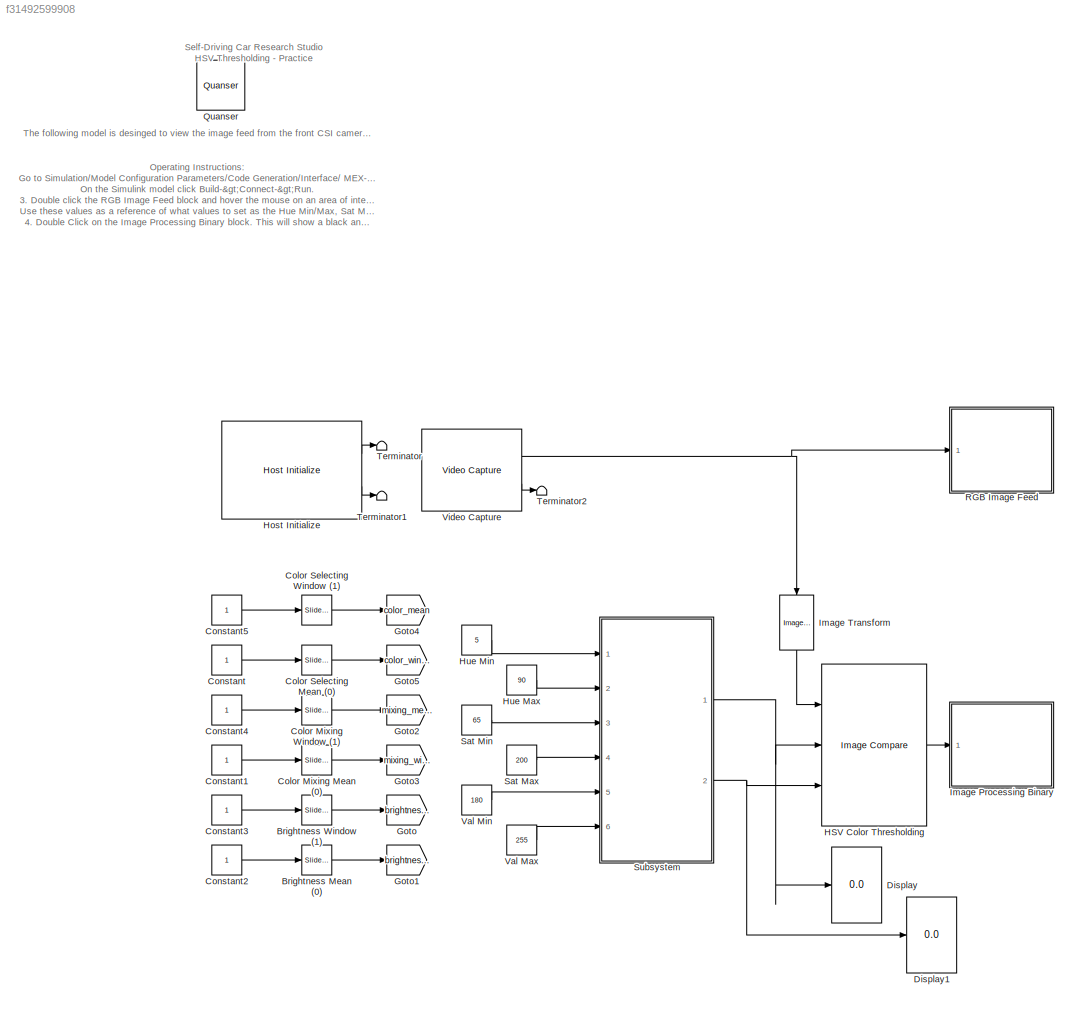
MODEL slx_f31492599908
KIND model
CONFIG AbsTol = auto
CONFIG EnableMultiTasking = on
CONFIG FixedStep = 1/600
CONFIG MaxStep = auto
CONFIG MinStep = auto
CONFIG RelTol = 1e-3
CONFIG SampleTimeConstraint = Unconstrained
CONFIG Solver = FixedStepDiscrete
CONFIG SolverName = FixedStepDiscrete
CONFIG StartTime = 0.0
CONFIG StopTime = inf
BLOCK [Reference] Brightness Mean (0)  REF=simulink/Math
Operations/Slider
Gain
  Ports = [1, 1]
  SourceBlock = simulink/Math\nOperations/Slider\nGain
  SourceProductBaseCode = SL
  SourceProductName = Simulink
  SourceType = Slider Gain
BLOCK [Reference] Brightness Window (1)  REF=simulink/Math
Operations/Slider
Gain
  Ports = [1, 1]
  SourceBlock = simulink/Math\nOperations/Slider\nGain
  SourceProductBaseCode = SL
  SourceProductName = Simulink
  SourceType = Slider Gain
BLOCK [Reference] Color Mixing Mean (0)  REF=simulink/Math
Operations/Slider
Gain
  Ports = [1, 1]
  SourceBlock = simulink/Math\nOperations/Slider\nGain
  SourceProductBaseCode = SL
  SourceProductName = Simulink
  SourceType = Slider Gain
BLOCK [Reference] Color Mixing Window (1)  REF=simulink/Math
Operations/Slider
Gain
  Ports = [1, 1]
  SourceBlock = simulink/Math\nOperations/Slider\nGain
  SourceProductBaseCode = SL
  SourceProductName = Simulink
  SourceType = Slider Gain
BLOCK [Reference] Color Selecting Mean (0)  REF=simulink/Math
Operations/Slider
Gain
  Ports = [1, 1]
  SourceBlock = simulink/Math\nOperations/Slider\nGain
  SourceProductBaseCode = SL
  SourceProductName = Simulink
  SourceType = Slider Gain
BLOCK [Reference] Color Selecting Window (1)  REF=simulink/Math
Operations/Slider
Gain
  Ports = [1, 1]
  SourceBlock = simulink/Math\nOperations/Slider\nGain
  SourceProductBaseCode = SL
  SourceProductName = Simulink
  SourceType = Slider Gain
BLOCK [Constant] Constant
BLOCK [Constant] Constant1
BLOCK [Constant] Constant2
BLOCK [Constant] Constant3
BLOCK [Constant] Constant4
BLOCK [Constant] Constant5
BLOCK [Display] Display
  Decimation = 1
  Ports = [1]
BLOCK [Display] Display1
  Decimation = 1
  Ports = [1]
BLOCK [Goto] Goto
  GotoTag = brightness_mean
  TagVisibility = global
BLOCK [Goto] Goto1
  GotoTag = brightness_window
  TagVisibility = global
BLOCK [Goto] Goto2
  GotoTag = mixing_mean
  TagVisibility = global
BLOCK [Goto] Goto3
  GotoTag = mixing_window
  TagVisibility = global
BLOCK [Goto] Goto4
  GotoTag = color_mean
  TagVisibility = global
BLOCK [Goto] Goto5
  GotoTag = color_window
  TagVisibility = global
BLOCK [Reference] HSV Color Thresholding  REF=quarc_library/Image Processing/Generic/Image Compare
  Ports = [3, 1]
  SourceBlock = quarc_library/Image Processing/Generic/Image Compare
  SourceProductName = QUARC Targets
  SourceType = Image Compare
BLOCK [Reference] Host Initialize  REF=quarc_library/Devices/Peripherals/Host/Host Initialize
  Ports = [0, 2]
  SourceBlock = quarc_library/Devices/Peripherals/Host/Host Initialize
  SourceProductName = QUARC Targets
  SourceType = Host Initialize
BLOCK [Constant] Hue Max
  Value = 90
BLOCK [Constant] Hue Min
  Value = 5
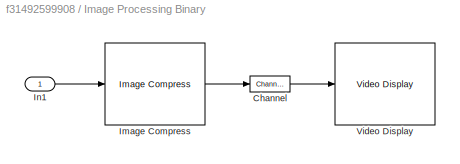
BLOCK [SubSystem] Image Processing Binary 
  CopyFcn = set_param(gcbh, 'UserData', gcb);\nset_param(gcbh, 'LinkStatus', 'none');
  LoadFcn = set_param(gcbh, 'UserData', gcb);
  NameChangeFcn = video_display_show([get_param(gcbh, 'UserData'), '/Video Display'], 'rename', [gcb, '/Video Display']);\nvideo_display_show([gcb, '/Video Display'], 'add', gcb);\nset_param(gcbh, 'UserData', gcb);
  OpenFcn = video_display_show([gcb, '/Video Display'], 'show', gcb);
  Ports = [1]
  PreDeleteFcn = video_display_show([gcb, '/Video Display'], 'delete');
  RequestExecContextInheritance = off
  StartFcn = video_display_show([gcb, '/Video Display'], 'add', gcb);
  UndoDeleteFcn = set_param(gcbh, 'UserData', gcb);
BLOCK [Reference] Image Processing Binary /Channel  REF=quarc_library/Signal Routing/Channel
  Ports = [1, 1]
  SourceBlock = quarc_library/Signal Routing/Channel
  SourceProductName = QUARC Targets
  SourceType = Channel
BLOCK [Reference] Image Processing Binary /Image Compress  REF=quarc_library/Image Processing/Generic/Image Compress
  AttributesFormatString = (%<algorithm>)
  Ports = [1, 1]
  SourceBlock = quarc_library/Image Processing/Generic/Image Compress
  SourceProductName = QUARC Targets
  SourceType = Image Compress
BLOCK [Inport] Image Processing Binary /In1
  IconDisplay = Port number
BLOCK [Reference] Image Processing Binary /Video Display  REF=quarc_library/Multimedia/Video Display
  Ports = [1]
  SourceBlock = quarc_library/Multimedia/Video Display
  SourceProductName = QUARC Targets
  SourceType = Video Display
  Tag = HSV_Selection/Image Processing \nBinary /Video Display
  UserDataPersistent = on
BLOCK [Reference] Image Transform  REF=quarc_library/Image Processing/Generic/Image Transform
  AttributesFormatString = (%<algorithm>)
  Ports = [1, 1]
  SourceBlock = quarc_library/Image Processing/Generic/Image Transform
  SourceProductName = QUARC Targets
  SourceType = Image Transform
BLOCK [Reference] Quanser  REF=quarc_library/Logos/Quanser
  Ports = []
  SourceBlock = quarc_library/Logos/Quanser
  SourceProductName = QUARC Targets
  SourceType = Powered by Quanser
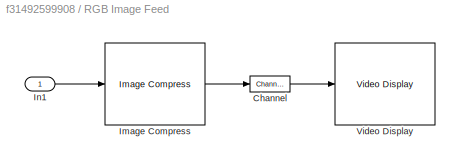
BLOCK [SubSystem] RGB Image Feed
  CopyFcn = set_param(gcbh, 'UserData', gcb);\nset_param(gcbh, 'LinkStatus', 'none');
  LoadFcn = set_param(gcbh, 'UserData', gcb);
  NameChangeFcn = video_display_show([get_param(gcbh, 'UserData'), '/Video Display'], 'rename', [gcb, '/Video Display']);\nvideo_display_show([gcb, '/Video Display'], 'add', gcb);\nset_param(gcbh, 'UserData', gcb);
  OpenFcn = video_display_show([gcb, '/Video Display'], 'show', gcb);
  Ports = [1]
  PreDeleteFcn = video_display_show([gcb, '/Video Display'], 'delete');
  RequestExecContextInheritance = off
  StartFcn = video_display_show([gcb, '/Video Display'], 'add', gcb);
  UndoDeleteFcn = set_param(gcbh, 'UserData', gcb);
BLOCK [Reference] RGB Image Feed/Channel  REF=quarc_library/Signal Routing/Channel
  Ports = [1, 1]
  SourceBlock = quarc_library/Signal Routing/Channel
  SourceProductName = QUARC Targets
  SourceType = Channel
BLOCK [Reference] RGB Image Feed/Image Compress  REF=quarc_library/Image Processing/Generic/Image Compress
  AttributesFormatString = (%<algorithm>)
  Ports = [1, 1]
  SourceBlock = quarc_library/Image Processing/Generic/Image Compress
  SourceProductName = QUARC Targets
  SourceType = Image Compress
BLOCK [Inport] RGB Image Feed/In1
  IconDisplay = Port number
BLOCK [Reference] RGB Image Feed/Video Display  REF=quarc_library/Multimedia/Video Display
  Ports = [1]
  SourceBlock = quarc_library/Multimedia/Video Display
  SourceProductName = QUARC Targets
  SourceType = Video Display
  Tag = HSV_Selection/RGB Image Feed/Video Display
  UserDataPersistent = on
BLOCK [Constant] Sat Max
  Value = 200
BLOCK [Constant] Sat Min
  Value = 65
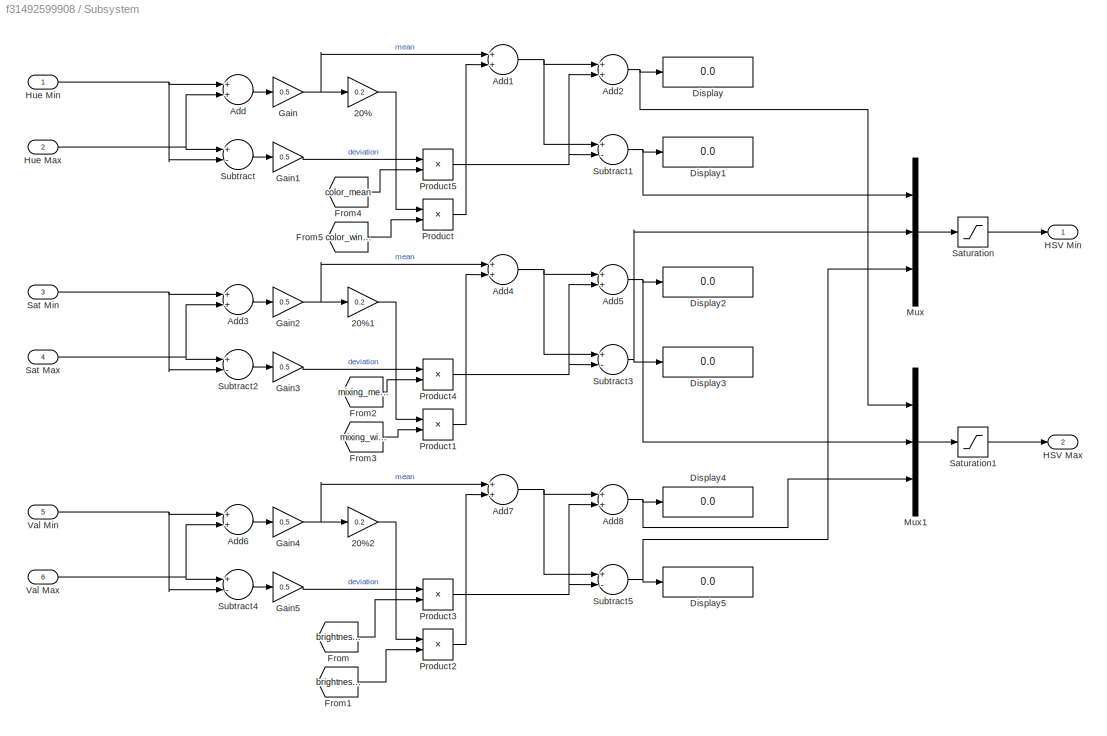
BLOCK [SubSystem] Subsystem
  Ports = [6, 2]
  RequestExecContextInheritance = off
BLOCK [Gain] Subsystem/20%
  Gain = 0.2
  OutDataTypeStr = Inherit: Inherit via internal rule
  ParamDataTypeStr = Inherit: Inherit via internal rule
  SaturateOnIntegerOverflow = off
BLOCK [Gain] Subsystem/20%1
  Gain = 0.2
  OutDataTypeStr = Inherit: Inherit via internal rule
  ParamDataTypeStr = Inherit: Inherit via internal rule
  SaturateOnIntegerOverflow = off
BLOCK [Gain] Subsystem/20%2
  Gain = 0.2
  OutDataTypeStr = Inherit: Inherit via internal rule
  ParamDataTypeStr = Inherit: Inherit via internal rule
  SaturateOnIntegerOverflow = off
BLOCK [Sum] Subsystem/Add
  InputSameDT = off
  OutDataTypeStr = Inherit: Inherit via internal rule
  Ports = [2, 1]
  SaturateOnIntegerOverflow = off
BLOCK [Sum] Subsystem/Add1
  InputSameDT = off
  OutDataTypeStr = Inherit: Inherit via internal rule
  Ports = [2, 1]
  SaturateOnIntegerOverflow = off
BLOCK [Sum] Subsystem/Add2
  InputSameDT = off
  OutDataTypeStr = Inherit: Inherit via internal rule
  Ports = [2, 1]
  SaturateOnIntegerOverflow = off
BLOCK [Sum] Subsystem/Add3
  InputSameDT = off
  OutDataTypeStr = Inherit: Inherit via internal rule
  Ports = [2, 1]
  SaturateOnIntegerOverflow = off
BLOCK [Sum] Subsystem/Add4
  InputSameDT = off
  OutDataTypeStr = Inherit: Inherit via internal rule
  Ports = [2, 1]
  SaturateOnIntegerOverflow = off
BLOCK [Sum] Subsystem/Add5
  InputSameDT = off
  OutDataTypeStr = Inherit: Inherit via internal rule
  Ports = [2, 1]
  SaturateOnIntegerOverflow = off
BLOCK [Sum] Subsystem/Add6
  InputSameDT = off
  OutDataTypeStr = Inherit: Inherit via internal rule
  Ports = [2, 1]
  SaturateOnIntegerOverflow = off
BLOCK [Sum] Subsystem/Add7
  InputSameDT = off
  OutDataTypeStr = Inherit: Inherit via internal rule
  Ports = [2, 1]
  SaturateOnIntegerOverflow = off
BLOCK [Sum] Subsystem/Add8
  InputSameDT = off
  OutDataTypeStr = Inherit: Inherit via internal rule
  Ports = [2, 1]
  SaturateOnIntegerOverflow = off
BLOCK [Display] Subsystem/Display
  Decimation = 1
  Ports = [1]
BLOCK [Display] Subsystem/Display1
  Decimation = 1
  Ports = [1]
BLOCK [Display] Subsystem/Display2
  Decimation = 1
  Ports = [1]
BLOCK [Display] Subsystem/Display3
  Decimation = 1
  Ports = [1]
BLOCK [Display] Subsystem/Display4
  Decimation = 1
  Ports = [1]
BLOCK [Display] Subsystem/Display5
  Decimation = 1
  Ports = [1]
BLOCK [From] Subsystem/From
  GotoTag = brightness_mean
  TagVisibility = global
BLOCK [From] Subsystem/From1
  GotoTag = brightness_window
  TagVisibility = global
BLOCK [From] Subsystem/From2
  GotoTag = mixing_mean
  TagVisibility = global
BLOCK [From] Subsystem/From3
  GotoTag = mixing_window
  TagVisibility = global
BLOCK [From] Subsystem/From4
  GotoTag = color_mean
  TagVisibility = global
BLOCK [From] Subsystem/From5
  GotoTag = color_window
  TagVisibility = global
BLOCK [Gain] Subsystem/Gain
  Gain = 0.5
  OutDataTypeStr = Inherit: Inherit via internal rule
  ParamDataTypeStr = Inherit: Inherit via internal rule
  SaturateOnIntegerOverflow = off
BLOCK [Gain] Subsystem/Gain1
  Gain = 0.5
  OutDataTypeStr = Inherit: Inherit via internal rule
  ParamDataTypeStr = Inherit: Inherit via internal rule
  SaturateOnIntegerOverflow = off
BLOCK [Gain] Subsystem/Gain2
  Gain = 0.5
  OutDataTypeStr = Inherit: Inherit via internal rule
  ParamDataTypeStr = Inherit: Inherit via internal rule
  SaturateOnIntegerOverflow = off
BLOCK [Gain] Subsystem/Gain3
  Gain = 0.5
  OutDataTypeStr = Inherit: Inherit via internal rule
  ParamDataTypeStr = Inherit: Inherit via internal rule
  SaturateOnIntegerOverflow = off
BLOCK [Gain] Subsystem/Gain4
  Gain = 0.5
  OutDataTypeStr = Inherit: Inherit via internal rule
  ParamDataTypeStr = Inherit: Inherit via internal rule
  SaturateOnIntegerOverflow = off
BLOCK [Gain] Subsystem/Gain5
  Gain = 0.5
  OutDataTypeStr = Inherit: Inherit via internal rule
  ParamDataTypeStr = Inherit: Inherit via internal rule
  SaturateOnIntegerOverflow = off
BLOCK [Outport] Subsystem/HSV Max
  IconDisplay = Port number
  Port = 2
BLOCK [Outport] Subsystem/HSV Min
  IconDisplay = Port number
BLOCK [Inport] Subsystem/Hue Max
  IconDisplay = Port number
  Port = 2
BLOCK [Inport] Subsystem/Hue Min
  IconDisplay = Port number
BLOCK [Mux] Subsystem/Mux
  DisplayOption = bar
  Inputs = 3
  Ports = [3, 1]
BLOCK [Mux] Subsystem/Mux1
  DisplayOption = bar
  Inputs = 3
  Ports = [3, 1]
BLOCK [Product] Subsystem/Product
  InputSameDT = off
  OutDataTypeStr = Inherit: Inherit via internal rule
  Ports = [2, 1]
  RndMeth = Floor
  SaturateOnIntegerOverflow = off
BLOCK [Product] Subsystem/Product1
  InputSameDT = off
  OutDataTypeStr = Inherit: Inherit via internal rule
  Ports = [2, 1]
  RndMeth = Floor
  SaturateOnIntegerOverflow = off
BLOCK [Product] Subsystem/Product2
  InputSameDT = off
  OutDataTypeStr = Inherit: Inherit via internal rule
  Ports = [2, 1]
  RndMeth = Floor
  SaturateOnIntegerOverflow = off
BLOCK [Product] Subsystem/Product3
  InputSameDT = off
  OutDataTypeStr = Inherit: Inherit via internal rule
  Ports = [2, 1]
  RndMeth = Floor
  SaturateOnIntegerOverflow = off
BLOCK [Product] Subsystem/Product4
  InputSameDT = off
  OutDataTypeStr = Inherit: Inherit via internal rule
  Ports = [2, 1]
  RndMeth = Floor
  SaturateOnIntegerOverflow = off
BLOCK [Product] Subsystem/Product5
  InputSameDT = off
  OutDataTypeStr = Inherit: Inherit via internal rule
  Ports = [2, 1]
  RndMeth = Floor
  SaturateOnIntegerOverflow = off
BLOCK [Inport] Subsystem/Sat Max
  IconDisplay = Port number
  Port = 4
BLOCK [Inport] Subsystem/Sat Min
  IconDisplay = Port number
  Port = 3
BLOCK [Saturate] Subsystem/Saturation
  InputPortMap = u0
  LowerLimit = [0 0 0]
  Ports = [1, 1]
  UpperLimit = [255 255 255]
BLOCK [Saturate] Subsystem/Saturation1
  InputPortMap = u0
  LowerLimit = [0 0 0]
  Ports = [1, 1]
  UpperLimit = [255 255 255]
BLOCK [Sum] Subsystem/Subtract
  InputSameDT = off
  Inputs = +-
  OutDataTypeStr = Inherit: Inherit via internal rule
  Ports = [2, 1]
  SaturateOnIntegerOverflow = off
BLOCK [Sum] Subsystem/Subtract1
  InputSameDT = off
  Inputs = +-
  OutDataTypeStr = Inherit: Inherit via internal rule
  Ports = [2, 1]
  SaturateOnIntegerOverflow = off
BLOCK [Sum] Subsystem/Subtract2
  InputSameDT = off
  Inputs = +-
  OutDataTypeStr = Inherit: Inherit via internal rule
  Ports = [2, 1]
  SaturateOnIntegerOverflow = off
BLOCK [Sum] Subsystem/Subtract3
  InputSameDT = off
  Inputs = +-
  OutDataTypeStr = Inherit: Inherit via internal rule
  Ports = [2, 1]
  SaturateOnIntegerOverflow = off
BLOCK [Sum] Subsystem/Subtract4
  InputSameDT = off
  Inputs = +-
  OutDataTypeStr = Inherit: Inherit via internal rule
  Ports = [2, 1]
  SaturateOnIntegerOverflow = off
BLOCK [Sum] Subsystem/Subtract5
  InputSameDT = off
  Inputs = +-
  OutDataTypeStr = Inherit: Inherit via internal rule
  Ports = [2, 1]
  SaturateOnIntegerOverflow = off
BLOCK [Inport] Subsystem/Val Max
  IconDisplay = Port number
  Port = 6
BLOCK [Inport] Subsystem/Val Min
  IconDisplay = Port number
  Port = 5
BLOCK [Terminator] Terminator
BLOCK [Terminator] Terminator1
BLOCK [Terminator] Terminator2
BLOCK [Constant] Val Max
  Value = 255
BLOCK [Constant] Val Min
  Value = 180
BLOCK [Reference] Video Capture  REF=quarc_library/Multimedia/Video Capture
  Ports = [0, 2]
  SourceBlock = quarc_library/Multimedia/Video Capture
  SourceProductName = QUARC Targets
  SourceType = Video Capture
ANNOTATION (root): Operating Instructions: Go to Simulation/Model Configuration Parameters/Code Generation/Interface/ MEX-file Arguments and ensure the IP address (by default 192.168.2.xxx) matches the same sequence of numbers as the LCD on the QCar. On the Simulink model click Build->Connect->Run. 3. Double click the RGB Image Feed block and hover the mouse on an area of interest and make note of the H S V values w...<+667ch>
ANNOTATION (root): The following model is desinged to view the image feed from the front CSI camera on the QCar for HSV image tresholding.
ANNOTATION (root): Self-Driving Car Research Studio HSV Thresholding - Practice
LINE Brightness Mean (0):1 -> Goto1:1
LINE Brightness Window (1):1 -> Goto:1
LINE Color Mixing Mean (0):1 -> Goto3:1
LINE Color Mixing Window (1):1 -> Goto2:1
LINE Color Selecting Mean (0):1 -> Goto5:1
LINE Color Selecting Window (1):1 -> Goto4:1
LINE Constant1:1 -> Color Mixing Mean (0):1
LINE Constant2:1 -> Brightness Mean (0):1
LINE Constant3:1 -> Brightness Window (1):1
LINE Constant4:1 -> Color Mixing Window (1):1
LINE Constant5:1 -> Color Selecting Window (1):1
LINE Constant:1 -> Color Selecting Mean (0):1
LINE HSV Color Thresholding:1 -> Image Processing Binary :1
LINE Host Initialize:1 -> Terminator:1
LINE Host Initialize:2 -> Terminator1:1
LINE Hue Max:1 -> Subsystem:2
LINE Hue Min:1 -> Subsystem:1
LINE Image Transform:1 -> HSV Color Thresholding:1
LINE Sat Max:1 -> Subsystem:4
LINE Sat Min:1 -> Subsystem:3
LINE Subsystem/20%1:1 -> Subsystem/Product1:1
LINE Subsystem/20%2:1 -> Subsystem/Product2:1
LINE Subsystem/20%:1 -> Subsystem/Product:1
NET Subsystem/Add1:1 -> Subsystem/Add2:1, Subsystem/Subtract1:1
NET Subsystem/Add2:1 -> Subsystem/Display:1, Subsystem/Mux1:1
LINE Subsystem/Add3:1 -> Subsystem/Gain2:1
NET Subsystem/Add4:1 -> Subsystem/Add5:1, Subsystem/Subtract3:1
NET Subsystem/Add5:1 -> Subsystem/Display2:1, Subsystem/Mux1:2
LINE Subsystem/Add6:1 -> Subsystem/Gain4:1
NET Subsystem/Add7:1 -> Subsystem/Add8:1, Subsystem/Subtract5:1
NET Subsystem/Add8:1 -> Subsystem/Display4:1, Subsystem/Mux1:3
LINE Subsystem/Add:1 -> Subsystem/Gain:1
LINE Subsystem/From1:1 -> Subsystem/Product2:2
LINE Subsystem/From2:1 -> Subsystem/Product4:2
LINE Subsystem/From3:1 -> Subsystem/Product1:2
LINE Subsystem/From4:1 -> Subsystem/Product5:2
LINE Subsystem/From5:1 -> Subsystem/Product:2
LINE Subsystem/From:1 -> Subsystem/Product3:2
LINE Subsystem/Gain1:1 -> Subsystem/Product5:1
NET Subsystem/Gain2:1 -> Subsystem/20%1:1, Subsystem/Add4:1
LINE Subsystem/Gain3:1 -> Subsystem/Product4:1
NET Subsystem/Gain4:1 -> Subsystem/20%2:1, Subsystem/Add7:1
LINE Subsystem/Gain5:1 -> Subsystem/Product3:1
NET Subsystem/Gain:1 -> Subsystem/20%:1, Subsystem/Add1:1
NET Subsystem/Hue Max:1 -> Subsystem/Add:2, Subsystem/Subtract:1
NET Subsystem/Hue Min:1 -> Subsystem/Add:1, Subsystem/Subtract:2
LINE Subsystem/Mux1:1 -> Subsystem/Saturation1:1
LINE Subsystem/Mux:1 -> Subsystem/Saturation:1
LINE Subsystem/Product1:1 -> Subsystem/Add4:2
LINE Subsystem/Product2:1 -> Subsystem/Add7:2
NET Subsystem/Product3:1 -> Subsystem/Add8:2, Subsystem/Subtract5:2
NET Subsystem/Product4:1 -> Subsystem/Add5:2, Subsystem/Subtract3:2
NET Subsystem/Product5:1 -> Subsystem/Add2:2, Subsystem/Subtract1:2
LINE Subsystem/Product:1 -> Subsystem/Add1:2
NET Subsystem/Sat Max:1 -> Subsystem/Add3:2, Subsystem/Subtract2:1
NET Subsystem/Sat Min:1 -> Subsystem/Add3:1, Subsystem/Subtract2:2
LINE Subsystem/Saturation1:1 -> Subsystem/HSV Max:1
LINE Subsystem/Saturation:1 -> Subsystem/HSV Min:1
NET Subsystem/Subtract1:1 -> Subsystem/Display1:1, Subsystem/Mux:1
LINE Subsystem/Subtract2:1 -> Subsystem/Gain3:1
NET Subsystem/Subtract3:1 -> Subsystem/Display3:1, Subsystem/Mux:2
LINE Subsystem/Subtract4:1 -> Subsystem/Gain5:1
NET Subsystem/Subtract5:1 -> Subsystem/Display5:1, Subsystem/Mux:3
LINE Subsystem/Subtract:1 -> Subsystem/Gain1:1
NET Subsystem/Val Max:1 -> Subsystem/Add6:2, Subsystem/Subtract4:1
NET Subsystem/Val Min:1 -> Subsystem/Add6:1, Subsystem/Subtract4:2
NET Subsystem:1 -> Display:1, HSV Color Thresholding:2
NET Subsystem:2 -> Display1:1, HSV Color Thresholding:3
LINE Val Max:1 -> Subsystem:6
LINE Val Min:1 -> Subsystem:5
NET Video Capture:1 -> Image Transform:1, RGB Image Feed:1
LINE Video Capture:2 -> Terminator2:1
note: NET lines group one-source signal fan-out (src -> all destinations, sorted); 1:1 wires keep LINE
